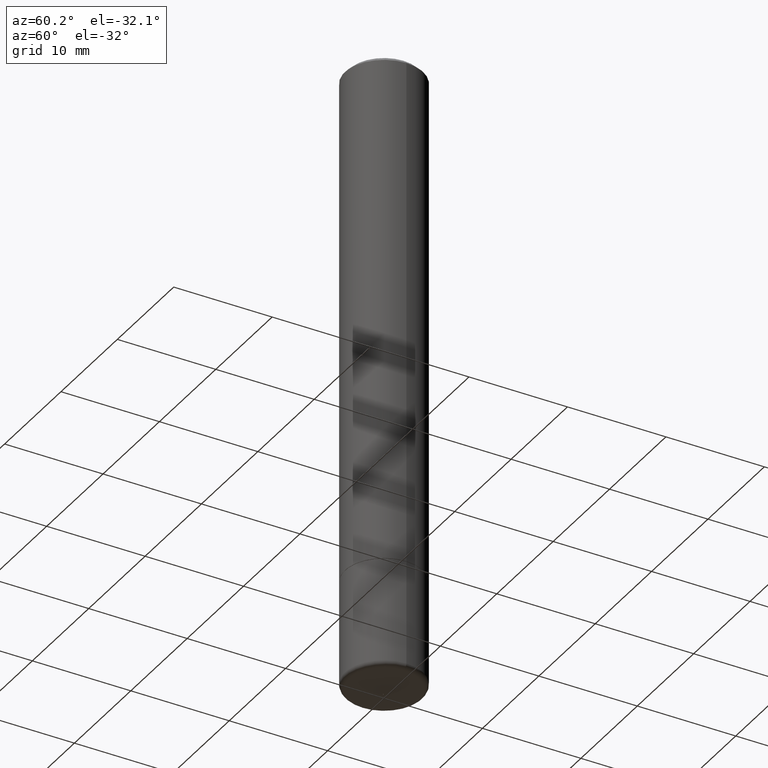
[diagram: clean part render]
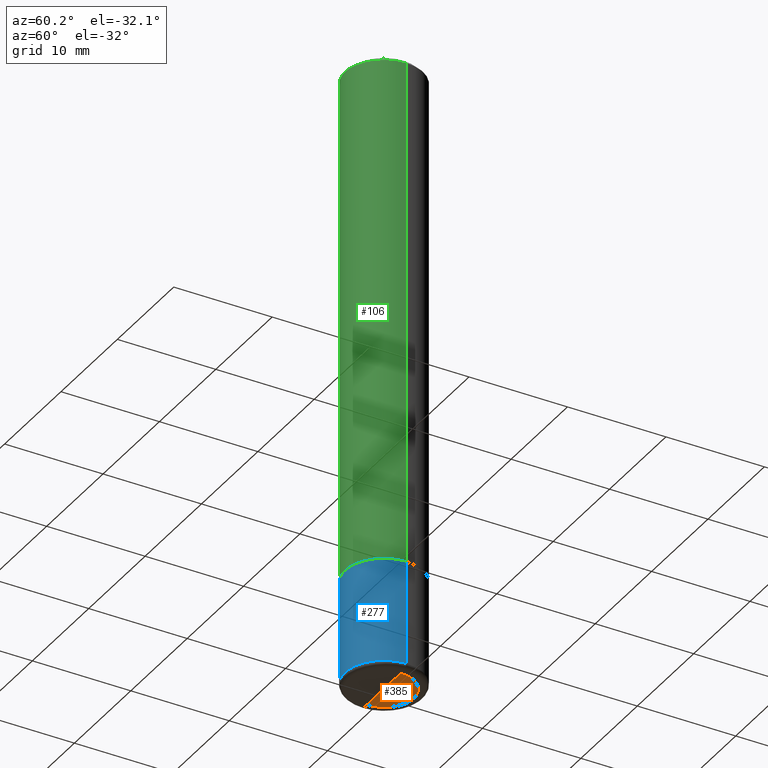
[diagram: same view with three faces highlighted in distinct colors, each labeled with its STEP entity id]
A machine part, auxiliary view with three faces highlighted in distinct colors.
Their STEP definitions:

[orange] entity #385 — the highlighted conical surface has half-angle 88 deg.
#2 = CARTESIAN_POINT ( 'NONE',  ( 6.113316349644044208E-29, -8.728195550579831030E-15, -2.499854561293974875 ) ) ;
#9 = CARTESIAN_POINT ( 'NONE',  ( 6.113316349644044208E-29, -8.728195550579831030E-15, -2.499854561293974875 ) ) ;
#29 = VECTOR ( 'NONE', #43, 39.37007874015748143 ) ;
#43 = DIRECTION ( 'NONE',  ( -0.9993908270190957621, 6.856857904024562781E-15, -0.03489949670249930386 ) ) ;
#46 = LINE ( 'NONE', #279, #29 ) ;
#51 = EDGE_LOOP ( 'NONE', ( #86, #406, #415 ) ) ;
#61 = DIRECTION ( 'NONE',  ( 0.9993908270190957621, -6.978169709227536755E-15, -0.03489949670249930386 ) ) ;
#70 = VECTOR ( 'NONE', #61, 39.37007874015748143 ) ;
#76 = VERTEX_POINT ( 'NONE', #98 ) ;
#86 = ORIENTED_EDGE ( 'NONE', *, *, #131, .F. ) ;
#96 = LINE ( 'NONE', #173, #70 ) ;
#98 = CARTESIAN_POINT ( 'NONE',  ( -0.1194098442900327905, -7.894361064554203421E-15, -2.499854561293974875 ) ) ;
#119 = DIRECTION ( 'NONE',  ( 1.000000000000000000, -6.982962677686268288E-15, 0.000000000000000000 ) ) ;
#131 = EDGE_CURVE ( 'NONE', #427, #205, #96, .T. ) ;
#173 = CARTESIAN_POINT ( 'NONE',  ( 0.1194098442900327905, -9.547406548245810886E-15, -2.499854561293974875 ) ) ;
#205 = VERTEX_POINT ( 'NONE', #329 ) ;
#231 = CIRCLE ( 'NONE', #332, 0.1194098442900327905 ) ;
#243 = FACE_OUTER_BOUND ( 'NONE', #51, .T. ) ;
#276 = DIRECTION ( 'NONE',  ( 2.445468806185136597E-29, -3.491481338843145583E-15, -1.000000000000000000 ) ) ;
#279 = CARTESIAN_POINT ( 'NONE',  ( -0.1194098442900327905, -7.894361064554203421E-15, -2.499854561293974875 ) ) ;
#307 = DIRECTION ( 'NONE',  ( -2.445468806185136597E-29, 3.491481338843145583E-15, 1.000000000000000000 ) ) ;
#329 = CARTESIAN_POINT ( 'NONE',  ( 0.1194098442900327905, -9.547406548245810886E-15, -2.499854561293974875 ) ) ;
#332 = AXIS2_PLACEMENT_3D ( 'NONE', #2, #307, #119 ) ;
#360 = EDGE_CURVE ( 'NONE', #205, #76, #231, .T. ) ;
#365 = CONICAL_SURFACE ( 'NONE', #426, 0.1194098442900327905, 1.535889741755011695 ) ;
#385 = ADVANCED_FACE ( 'NONE', ( #243 ), #365, .F. ) ;
#391 = DIRECTION ( 'NONE',  ( -1.000000000000000000, 6.982962677686268288E-15, 0.000000000000000000 ) ) ;
#406 = ORIENTED_EDGE ( 'NONE', *, *, #416, .T. ) ;
#415 = ORIENTED_EDGE ( 'NONE', *, *, #360, .F. ) ;
#416 = EDGE_CURVE ( 'NONE', #427, #76, #46, .T. ) ;
#423 = CARTESIAN_POINT ( 'NONE',  ( 6.103119029258668310E-29, -8.713636479639446360E-15, -2.495684677646476946 ) ) ;
#426 = AXIS2_PLACEMENT_3D ( 'NONE', #9, #276, #391 ) ;
#427 = VERTEX_POINT ( 'NONE', #423 ) ;

[blue] entity #277 — the highlighted cylindrical surface (partial cylindrical patch) has radius 3.9687 mm, axis along (-0, 0, 1).
#7 = AXIS2_PLACEMENT_3D ( 'NONE', #485, #152, #452 ) ;
#11 = VERTEX_POINT ( 'NONE', #47 ) ;
#37 = EDGE_LOOP ( 'NONE', ( #483, #421, #117, #450 ) ) ;
#47 = CARTESIAN_POINT ( 'NONE',  ( 0.1562499999999996392, -8.292268179752465385E-15, -2.062500000000000000 ) ) ;
#65 = DIRECTION ( 'NONE',  ( -2.445468806185136877E-29, 3.491481338843145188E-15, 1.000000000000000000 ) ) ;
#77 = CARTESIAN_POINT ( 'NONE',  ( -0.1562499999999996392, -6.819805295671450729E-15, -2.062500000000000000 ) ) ;
#82 = CIRCLE ( 'NONE', #209, 0.1562499999999995282 ) ;
#84 = EDGE_CURVE ( 'NONE', #183, #317, #363, .T. ) ;
#85 = DIRECTION ( 'NONE',  ( -2.445468806185136597E-29, 3.491481338843145583E-15, 1.000000000000000000 ) ) ;
#95 = VERTEX_POINT ( 'NONE', #253 ) ;
#109 = DIRECTION ( 'NONE',  ( 1.000000000000000000, -6.982962677686266711E-15, 0.000000000000000000 ) ) ;
#117 = ORIENTED_EDGE ( 'NONE', *, *, #258, .T. ) ;
#127 = CARTESIAN_POINT ( 'NONE',  ( 6.064764501658314522E-29, -8.658876379229219650E-15, -2.480000761538716958 ) ) ;
#141 = CARTESIAN_POINT ( 'NONE',  ( -0.1562499999999995282, -6.819805295671450729E-15, -2.480000761538716958 ) ) ;
#147 = CIRCLE ( 'NONE', #222, 0.1562499999999996392 ) ;
#149 = CYLINDRICAL_SURFACE ( 'NONE', #7, 0.1562499999999995837 ) ;
#152 = DIRECTION ( 'NONE',  ( -2.445468806185136597E-29, 3.491481338843145583E-15, 1.000000000000000000 ) ) ;
#183 = VERTEX_POINT ( 'NONE', #141 ) ;
#209 = AXIS2_PLACEMENT_3D ( 'NONE', #127, #85, #388 ) ;
#222 = AXIS2_PLACEMENT_3D ( 'NONE', #439, #373, #109 ) ;
#248 = VECTOR ( 'NONE', #65, 39.37007874015748143 ) ;
#253 = CARTESIAN_POINT ( 'NONE',  ( 0.1562499999999995282, -9.749964297617694879E-15, -2.480000761538716958 ) ) ;
#258 = EDGE_CURVE ( 'NONE', #95, #11, #369, .T. ) ;
#273 = EDGE_CURVE ( 'NONE', #317, #11, #147, .T. ) ;
#277 = ADVANCED_FACE ( 'NONE', ( #489 ), #149, .T. ) ;
#317 = VERTEX_POINT ( 'NONE', #77 ) ;
#331 = CARTESIAN_POINT ( 'NONE',  ( -0.1562499999999995837, 1.110223024625153582E-15, -7.685836078523270140E-30 ) ) ;
#363 = LINE ( 'NONE', #331, #248 ) ;
#369 = LINE ( 'NONE', #414, #473 ) ;
#373 = DIRECTION ( 'NONE',  ( -2.445468806185136597E-29, 3.491481338843145583E-15, 1.000000000000000000 ) ) ;
#388 = DIRECTION ( 'NONE',  ( 1.000000000000000000, -6.982962677686265133E-15, 0.000000000000000000 ) ) ;
#414 = CARTESIAN_POINT ( 'NONE',  ( 0.1562499999999995837, -1.091087918388476413E-15, 7.619026212181130759E-30 ) ) ;
#421 = ORIENTED_EDGE ( 'NONE', *, *, #440, .T. ) ;
#439 = CARTESIAN_POINT ( 'NONE',  ( 5.043779412756844791E-29, -7.201180261363988578E-15, -2.062500000000000000 ) ) ;
#440 = EDGE_CURVE ( 'NONE', #183, #95, #82, .T. ) ;
#450 = ORIENTED_EDGE ( 'NONE', *, *, #273, .F. ) ;
#452 = DIRECTION ( 'NONE',  ( 1.000000000000000000, -6.982962677686267499E-15, 4.876176775795936914E-29 ) ) ;
#473 = VECTOR ( 'NONE', #482, 39.37007874015748143 ) ;
#482 = DIRECTION ( 'NONE',  ( -2.445468806185136877E-29, 3.491481338843145188E-15, 1.000000000000000000 ) ) ;
#483 = ORIENTED_EDGE ( 'NONE', *, *, #84, .F. ) ;
#485 = CARTESIAN_POINT ( 'NONE',  ( 0.000000000000000000, 0.000000000000000000, 0.000000000000000000 ) ) ;
#489 = FACE_OUTER_BOUND ( 'NONE', #37, .T. ) ;

[green] entity #106 — the highlighted cylindrical surface (partial cylindrical patch) has radius 3.9687 mm, axis along (-0, 0, 1).
#6 = AXIS2_PLACEMENT_3D ( 'NONE', #470, #17, #397 ) ;
#17 = DIRECTION ( 'NONE',  ( -2.445468806185136597E-29, 3.491481338843145583E-15, 1.000000000000000000 ) ) ;
#19 = CIRCLE ( 'NONE', #115, 0.1562499999999996392 ) ;
#22 = DIRECTION ( 'NONE',  ( -2.445468806185136877E-29, 3.491481338843145188E-15, 1.000000000000000000 ) ) ;
#25 = FACE_OUTER_BOUND ( 'NONE', #206, .T. ) ;
#60 = CARTESIAN_POINT ( 'NONE',  ( 5.041333943950659188E-29, -7.197688780025145571E-15, -2.061500000000000110 ) ) ;
#64 = CIRCLE ( 'NONE', #438, 0.1562499999999994726 ) ;
#106 = ADVANCED_FACE ( 'NONE', ( #25 ), #255, .T. ) ;
#113 = DIRECTION ( 'NONE',  ( -2.445468806185136597E-29, 3.491481338843145583E-15, 1.000000000000000000 ) ) ;
#115 = AXIS2_PLACEMENT_3D ( 'NONE', #60, #393, #361 ) ;
#122 = EDGE_CURVE ( 'NONE', #334, #233, #431, .T. ) ;
#139 = ORIENTED_EDGE ( 'NONE', *, *, #179, .T. ) ;
#161 = VECTOR ( 'NONE', #441, 39.37007874015748143 ) ;
#179 = EDGE_CURVE ( 'NONE', #459, #334, #19, .T. ) ;
#206 = EDGE_LOOP ( 'NONE', ( #357, #139, #422, #390 ) ) ;
#217 = CARTESIAN_POINT ( 'NONE',  ( 0.1562499999999995282, -1.091087918388475821E-15, 7.619026212181126555E-30 ) ) ;
#223 = CARTESIAN_POINT ( 'NONE',  ( 0.1562499999999996392, -8.288776698413622377E-15, -2.061500000000000110 ) ) ;
#227 = CARTESIAN_POINT ( 'NONE',  ( 0.1562499999999994726, -1.141782438928661161E-15, -0.02000000000000008021 ) ) ;
#233 = VERTEX_POINT ( 'NONE', #227 ) ;
#238 = VECTOR ( 'NONE', #22, 39.37007874015748143 ) ;
#252 = EDGE_CURVE ( 'NONE', #459, #453, #333, .T. ) ;
#255 = CYLINDRICAL_SURFACE ( 'NONE', #6, 0.1562499999999995282 ) ;
#267 = DIRECTION ( 'NONE',  ( 1.000000000000000000, -6.982962677686265133E-15, 0.000000000000000000 ) ) ;
#285 = CARTESIAN_POINT ( 'NONE',  ( -0.1562499999999994726, 1.021258291611612128E-15, -0.02000000000000008021 ) ) ;
#333 = LINE ( 'NONE', #411, #161 ) ;
#334 = VERTEX_POINT ( 'NONE', #223 ) ;
#346 = EDGE_CURVE ( 'NONE', #453, #233, #64, .T. ) ;
#357 = ORIENTED_EDGE ( 'NONE', *, *, #252, .F. ) ;
#361 = DIRECTION ( 'NONE',  ( 1.000000000000000000, -6.982962677686266711E-15, 0.000000000000000000 ) ) ;
#390 = ORIENTED_EDGE ( 'NONE', *, *, #346, .F. ) ;
#393 = DIRECTION ( 'NONE',  ( -2.445468806185136597E-29, 3.491481338843145583E-15, 1.000000000000000000 ) ) ;
#397 = DIRECTION ( 'NONE',  ( 1.000000000000000000, -6.982962677686266711E-15, 4.876176775795935793E-29 ) ) ;
#411 = CARTESIAN_POINT ( 'NONE',  ( -0.1562499999999995282, 1.110223024625153188E-15, -7.685836078523267338E-30 ) ) ;
#422 = ORIENTED_EDGE ( 'NONE', *, *, #122, .T. ) ;
#431 = LINE ( 'NONE', #217, #238 ) ;
#435 = CARTESIAN_POINT ( 'NONE',  ( -0.1562499999999996392, -2.523536178775847500E-15, -2.061500000000000110 ) ) ;
#438 = AXIS2_PLACEMENT_3D ( 'NONE', #444, #113, #267 ) ;
#441 = DIRECTION ( 'NONE',  ( -2.445468806185136877E-29, 3.491481338843145188E-15, 1.000000000000000000 ) ) ;
#444 = CARTESIAN_POINT ( 'NONE',  ( 4.890937612370293302E-31, -6.982962677686318726E-17, -0.02000000000000008021 ) ) ;
#453 = VERTEX_POINT ( 'NONE', #285 ) ;
#459 = VERTEX_POINT ( 'NONE', #435 ) ;
#470 = CARTESIAN_POINT ( 'NONE',  ( 0.000000000000000000, 0.000000000000000000, 0.000000000000000000 ) ) ;